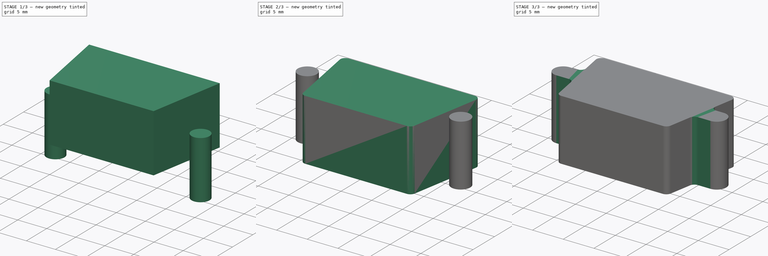
[diagram: build sequence overview — one tinted view per stage of 3, left to right]
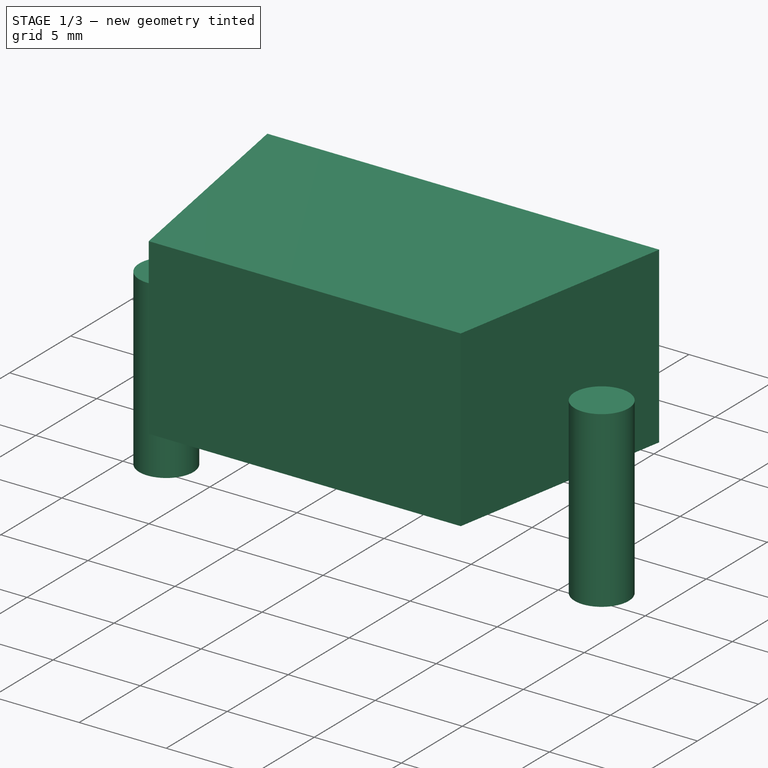
[diagram: stage 1 of 3 — iso view after this stage's code; geometry added in this stage tinted green]
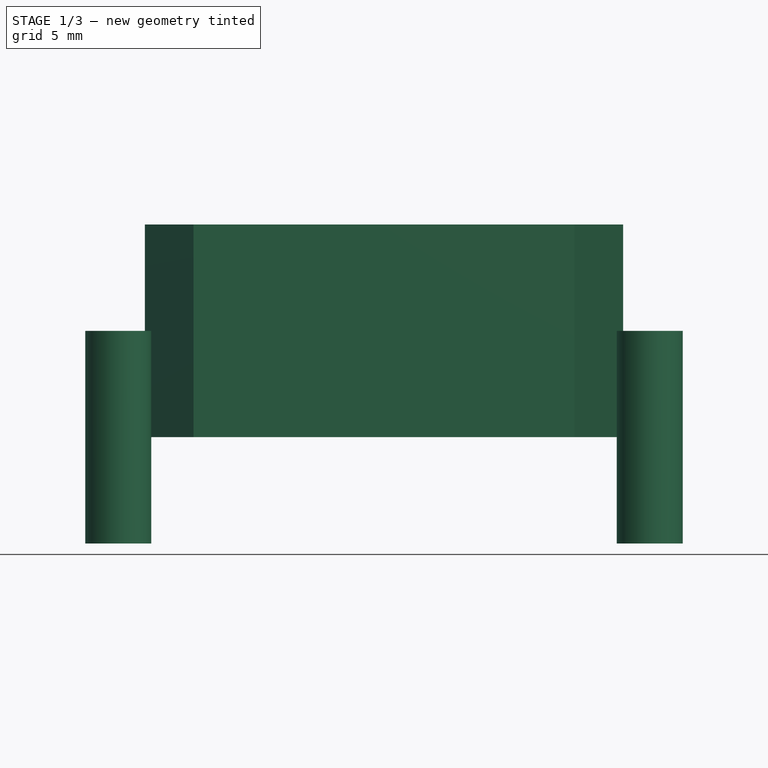
[diagram: stage 1 of 3 — front view after this stage's code; geometry added in this stage tinted green]
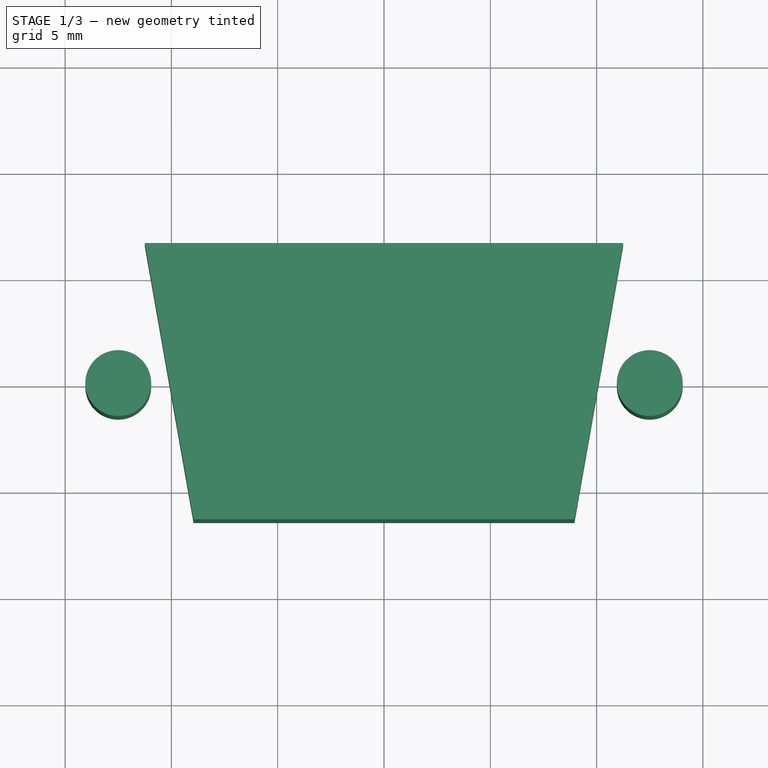
[diagram: stage 1 of 3 — top view after this stage's code; geometry added in this stage tinted green]
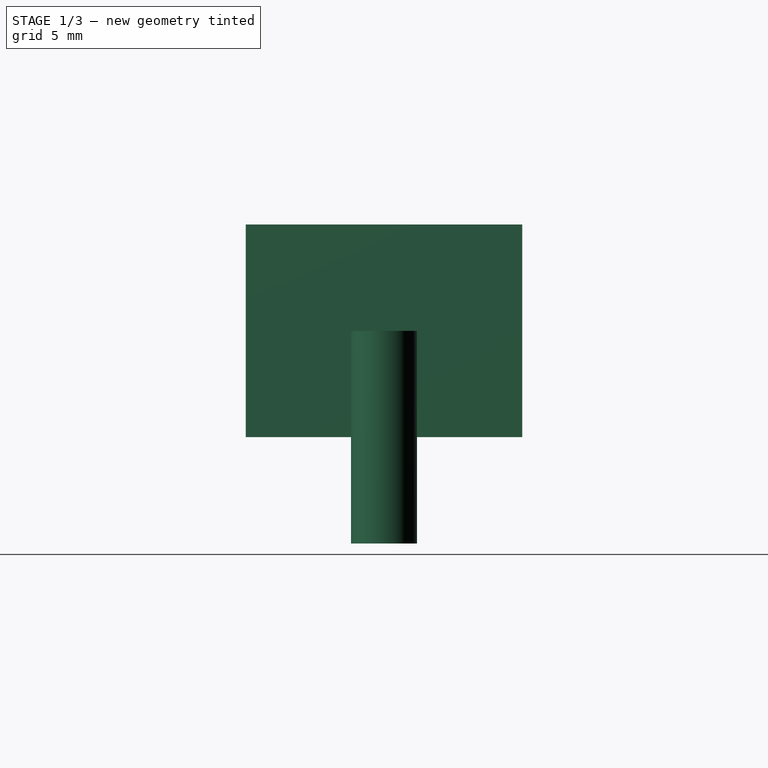
[diagram: stage 1 of 3 — right view after this stage's code; geometry added in this stage tinted green]
FCSTD DOCUMENT  (FreeCAD 1.0R1.0.0)
Label: DSub_IEC_60807_3
License: All rights reserved
LicenseURL: http://en.wikipedia.org/wiki/All_rights_reserved
objects: Part::Fillet×3, Sketcher::SketchObject×2, PartDesign::Pad×2, PartDesign::Body×2, Part::Cylinder×2, Spreadsheet::Sheet×1, Part::MultiFuse×1
note: 18 computed .brp shape members not serialized (recipe doc carries the construction recipe); baked Part::Feature solids carry a one-line shape summary decoded from their .brp

FEATURE [PartDesign::Body] Body  label="Panel Cutout Drawing"
  AllowCompound = false
  Group = -> [Sketch,Pad]
  Origin = -> Origin
  Placement = pos=(0,0,-5) rot=(0,0,1;0rad)
  Tip = -> Pad
  expr: .Placement.Base.z = -<<DSubConnector>>.cutout_template_height / 2
FEATURE [Part::Cylinder] Cylinder
  Angle = 360
  AttacherType = Attacher::AttachEngine3D
  FirstAngle = 0
  Height = 10
  Placement = pos=(12.5,0,-5) rot=(0,0,1;0rad)
  Radius = 1.55
  SecondAngle = 0
  expr: .Placement.Base.x = <<DSubConnector>>.cutoutD
  expr: .Placement.Base.z = -<<DSubConnector>>.cutout_template_height / 2
  expr: Height = <<DSubConnector>>.cutout_template_height
  expr: Radius = <<DSubConnector>>.cutoutG / 2
FEATURE [Part::Cylinder] Cylinder001
  Angle = 360
  AttacherType = Attacher::AttachEngine3D
  FirstAngle = 0
  Height = 10
  Placement = pos=(-12.5,0,-5) rot=(0,0,1;0rad)
  Radius = 1.55
  SecondAngle = 0
  expr: .Placement.Base.x = -<<DSubConnector>>.cutoutD
  expr: .Placement.Base.z = -<<DSubConnector>>.cutout_template_height / 2
  expr: Height = <<DSubConnector>>.cutout_template_height
  expr: Radius = <<DSubConnector>>.cutoutG / 2
FEATURE [Sketcher::SketchObject] Sketch001
  ArcFitTolerance = 1e-06
  AttachmentSupport = -> [XY_Plane001]
  FullyConstrained = true
  MakeInternals = false
  MapMode = 5
  expr: Constraints[2] = <<DSubConnector>>.cutoutA
  expr: Constraints[3] = <<DSubConnector>>.cutoutE
  expr: Constraints[4] = tan(10) * <<DSubConnector>>.cutoutE
  expr: Constraints[5] = tan(10) * <<DSubConnector>>.cutoutE
  expr: Constraints[6] = <<DSubConnector>>.cutoutA / 2
  expr: Constraints[7] = <<DSubConnector>>.cutoutE / 2
  sketch-geometry (4):
    g0: LineSegment StartX=-11.25 StartY=6.5 StartZ=0 EndX=11.25 EndY=6.5 EndZ=0
    g1: LineSegment StartX=8.95775 StartY=-6.5 StartZ=0 EndX=-8.95775 EndY=-6.5 EndZ=0
    g2: LineSegment StartX=-11.25 StartY=6.5 StartZ=0 EndX=-8.95775 EndY=-6.5 EndZ=0
    g3: LineSegment StartX=11.25 StartY=6.5 StartZ=0 EndX=8.95775 EndY=-6.5 EndZ=0
  constraints (12):
    c: Horizontal(g0)
    c: Horizontal(g1)
    c: DistanceX(g0,g0) = 22.5
    c: DistanceY(g1,g0) = 13
    c: DistanceX(g1,g0) = 2.29225
    c: DistanceX(g0,g1) = 2.29225
    c: DistanceX(g-1,g0) = 11.25
    c: DistanceY(g-1,g0) = 6.5
    c: Coincident(g2,g0)
    c: Coincident(g2,g1)
    c: Coincident(g3,g0)
    c: Coincident(g3,g1)
FEATURE [PartDesign::Pad] Pad001
  Direction = (0,0,1)
  Length = 10
  Length2 = 10
  Profile = -> Sketch001
  ReferenceAxis = -> Sketch001 [N_Axis]
  Suppressed = false
  Type = 0
  expr: Length = <<DSubConnector>>.cutout_template_height
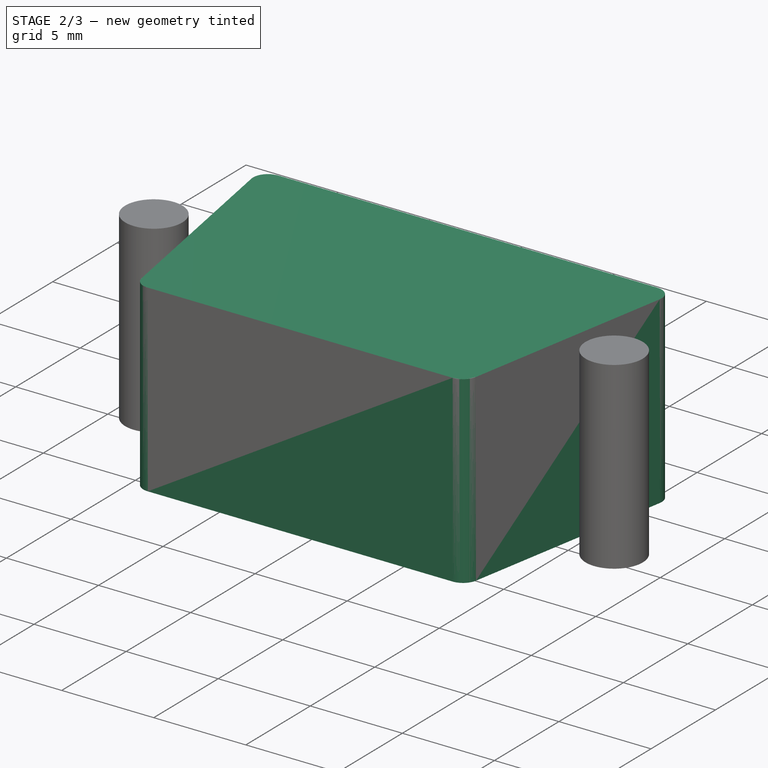
[diagram: stage 2 of 3 — iso view after this stage's code; geometry added in this stage tinted green]
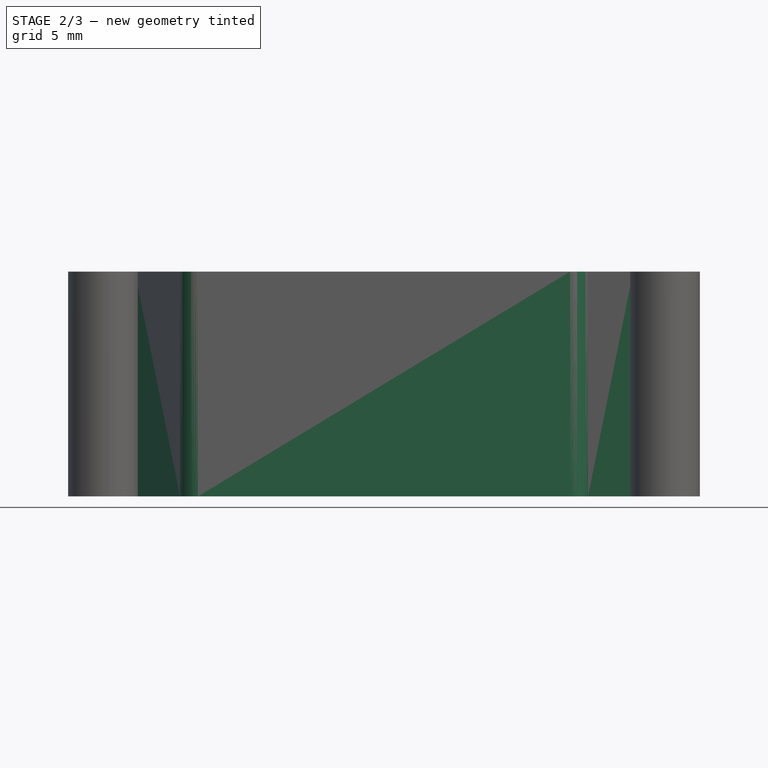
[diagram: stage 2 of 3 — front view after this stage's code; geometry added in this stage tinted green]
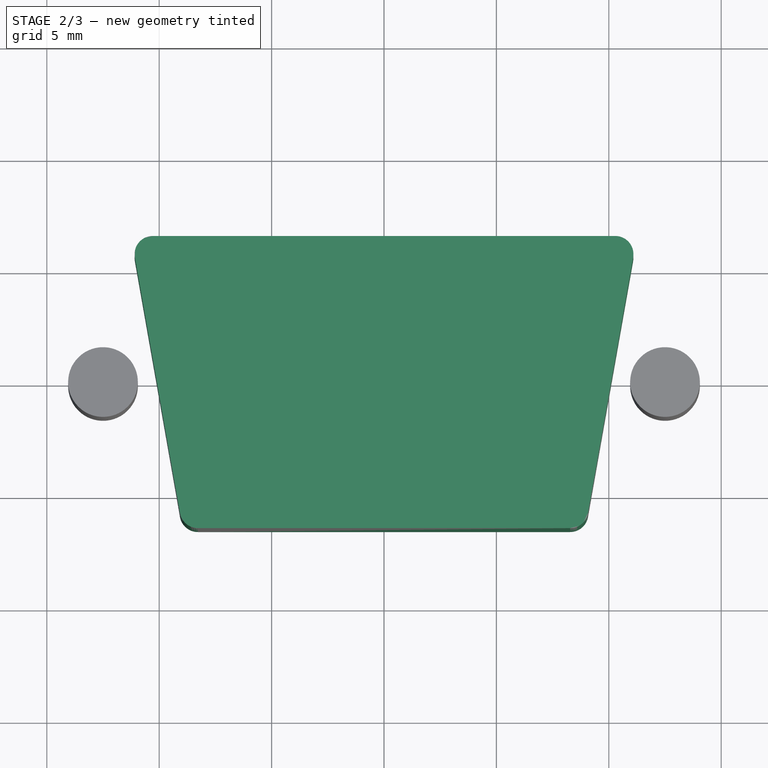
[diagram: stage 2 of 3 — top view after this stage's code; geometry added in this stage tinted green]
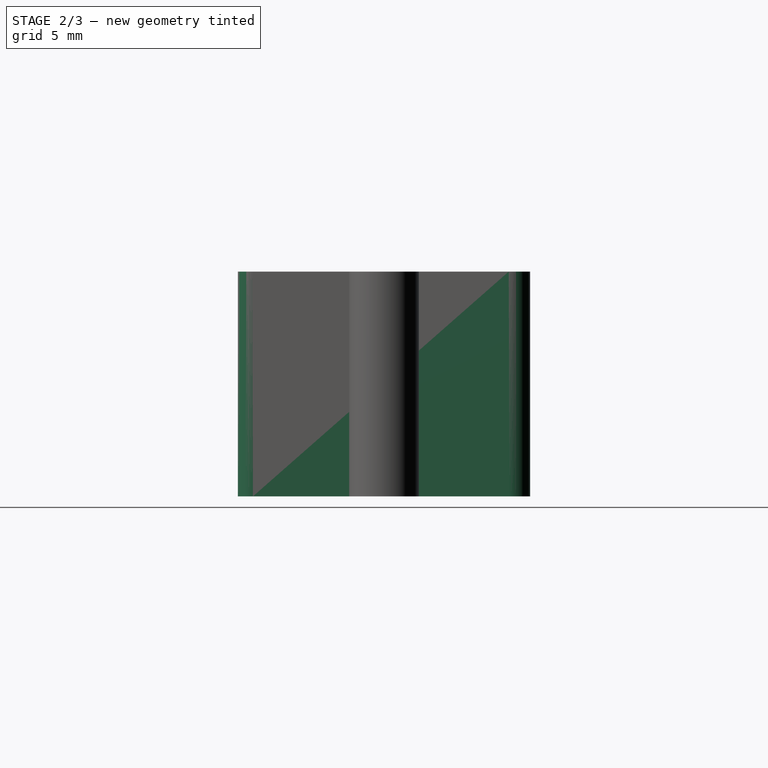
[diagram: stage 2 of 3 — right view after this stage's code; geometry added in this stage tinted green]
FEATURE [PartDesign::Body] Body001  label="Panel Cutout Rear"
  AllowCompound = false
  Group = -> [Sketch001,Pad001]
  Origin = -> Origin001
  Placement = pos=(0,0,-5) rot=(0,0,1;0rad)
  Tip = -> Pad001
  expr: .Placement.Base.z = -<<DSubConnector>>.cutout_template_height / 2
FEATURE [Part::MultiFuse] Fusion
  Shapes = -> [Cylinder001,Cylinder,Body001]
FEATURE [Part::Fillet] Fillet004  label="Panel Cutout Rear001"
  Base = -> Fusion
  EdgeLinks = -> Fusion [Edge7,Edge8,Edge11,Edge14]
  Edges = 4 edges r=0.81: [Edge7,Edge8,Edge11,Edge14]
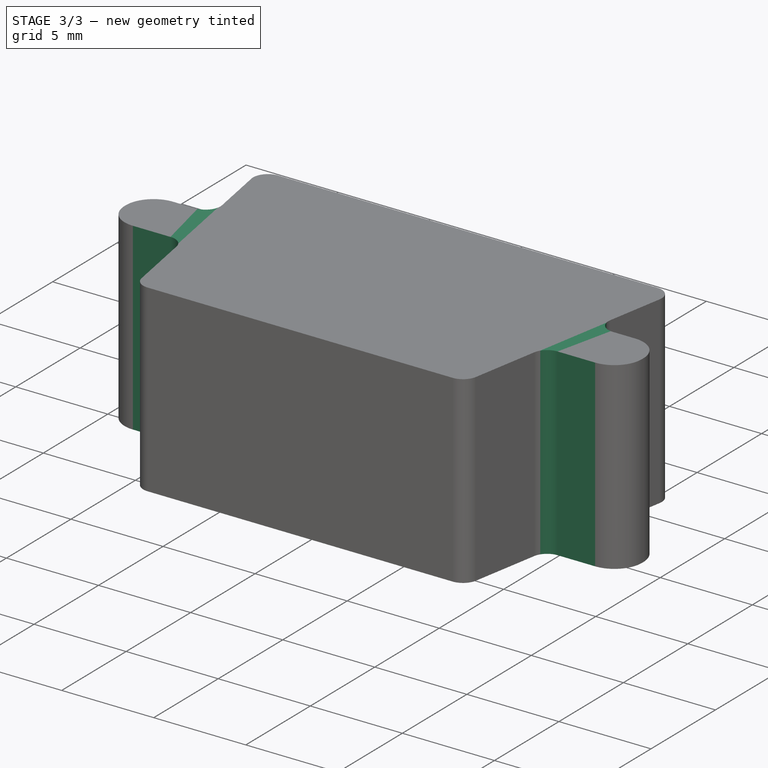
[diagram: stage 3 of 3 — iso view after this stage's code; geometry added in this stage tinted green]
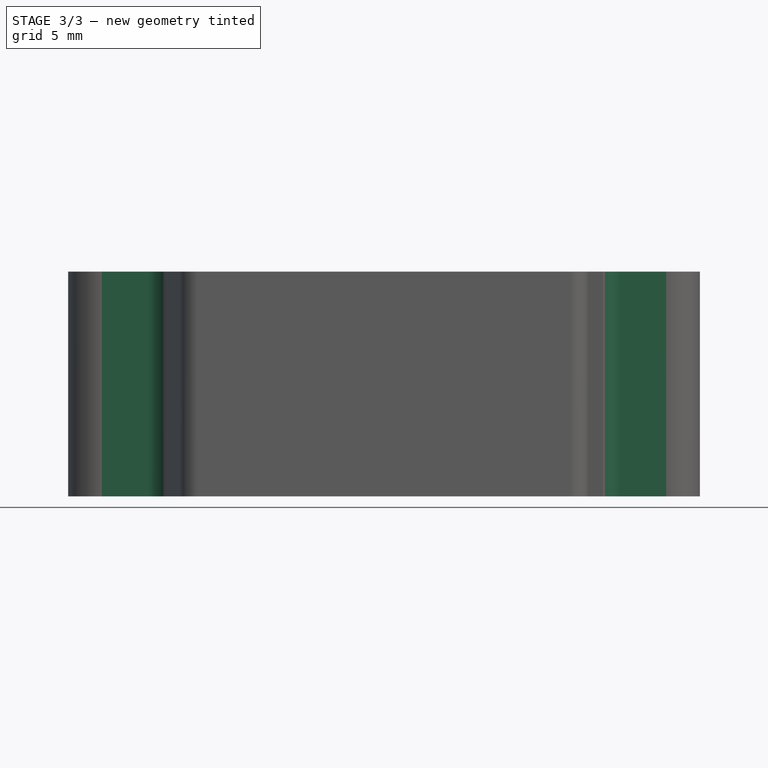
[diagram: stage 3 of 3 — front view after this stage's code; geometry added in this stage tinted green]
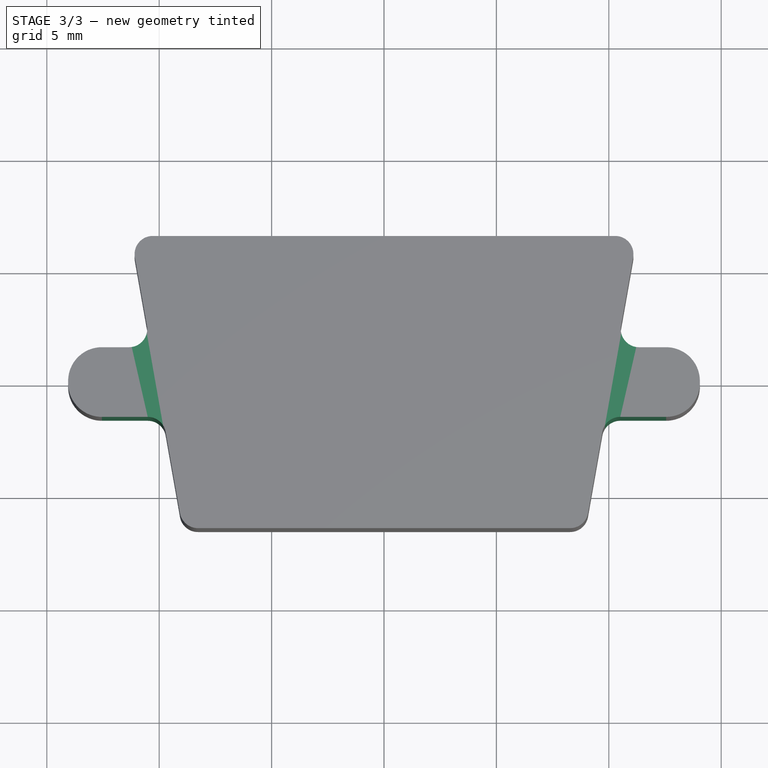
[diagram: stage 3 of 3 — top view after this stage's code; geometry added in this stage tinted green]
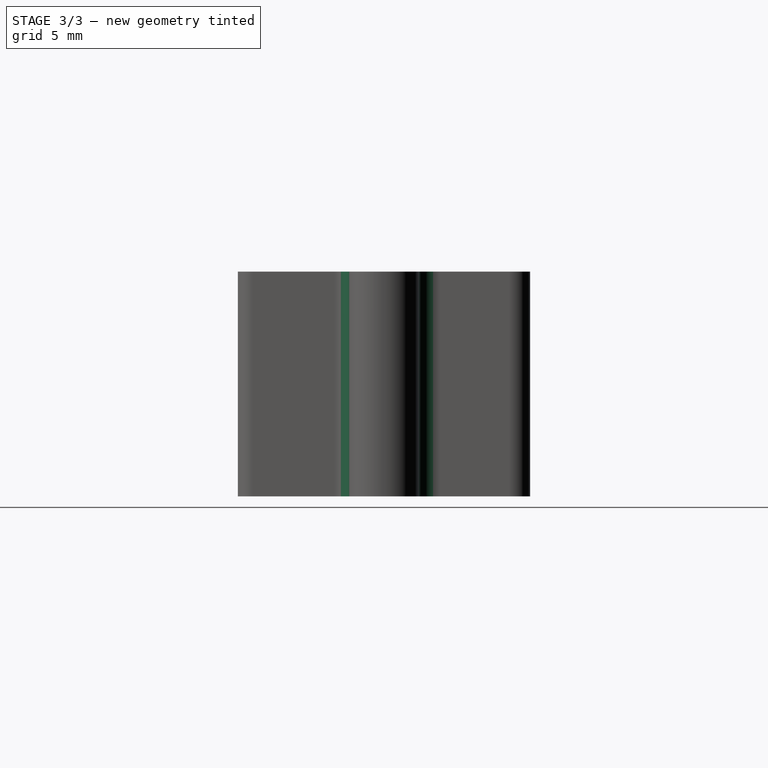
[diagram: stage 3 of 3 — right view after this stage's code; geometry added in this stage tinted green]
FEATURE [Spreadsheet::Sheet] Spreadsheet  label="DSubConnector"
  cells = A1='Number of contacts; B1='Shell size; C1='A; D1='B; E1='C; F1='D; G1='E; H1='F; I1='G; J1='H; K1='J; L1='K; M1='L; N1='M; O1='Cutout A; P1='Cutout B; Q1='Cutout C; R1='Cutout D; S1='Cutout E; T1='Cutout F; U1='Cutout G; V1='Cutout H; W1='Cutout J; A2==hiddenref(.pin_count.String); B2(shell_size)==.B3; C2(dimA)==.C3; D2(dimB)==.D3; E2(dimC)==.E3; F2(dimD)==.F3; G2(dimE)==.G3; H2(dimF)==.H3; I2(dimG)==.I3; J2(dimH)==.J3; K2(dimJ)==.K3; L2(dimK)==.L3; M2(dimL)==.M3; N2(dimM)==.N3; O2(cutoutA)==.O3; P2(cutoutB)==.P3; Q2(cutoutC)==.Q3; R2(cutoutD)==.R3; S2(cutoutE)==.S3; T2(cutoutF)==.T3; U2(cutoutG)==.U3; V2(cutoutH)==.V3; W2(cutoutJ)==.W3; A3='9; B3=1; C3=30.81; D3=16.915; E3=30.935; F3=8.355; G3=12.55; H3=10.715; I3=6.73; J3=19.275; K3=10.715; L3=1.78; M3=0.765; N3=4.04; O3=22.5; P3=11.1; Q3=25; R3=12.5; S3=13; T3=6.5; U3=3.1; V3=1.5; W3=3.4; A4='15; B4=2; C4=39.14; D4=25.245; E4=33.325; F4=8.355; G4=12.55; H4=10.715; I4=6.73; J4=27.505; K4=10.715; L4=1.78; M4=0.765; N4=4.04; O4=30.5; P4=15.3; Q4=33.3; R4=16.7; S4=13; T4=6.5; U4=3.1; V4=1.5; W4=3.4; A5='25; B5=3; C5=53.035; D5=38.965; E5=47.04; F5=8.355; G5=12.55; H5=10.82; I5=6.5; J5=41.275; K5=10.715; L5=1.78; M5=0.99; N5=3.81; O5=44.3; P5=22.2; Q5=47; R5=23.5; S5=13; T5=6.5; U5=3.1; V5=1.5; W5=3.4; A6='37; B6=4; C6=66.93; D6=52.805; E6=61.115; F6=11.2; G6=15.37; H6=10.82; I6=6.5; J6=57.705; K6=10.715; L6=1.78; M6=0.99; N6=3.81; O6=60.7; P6=21.3; Q6=63.5; R6=31.8; S6=13; T6=6.5; U6=3.1; V6=1.5; W6=3.4; A8='Cutout configuration; A9='Cutout template height; B9(cutout_template_height)=10
  pin_count = 0
  expr: .cells.Bind.B2.W2 = tuple(.cells; <<B>> + str(hiddenref(pin_count) + 3); <<W>> + str(hiddenref(pin_count) + 3))
  expr: .pin_count.Enum = cells[<<A3:|>>]
FEATURE [Sketcher::SketchObject] Sketch
  ArcFitTolerance = 1e-06
  AttachmentSupport = -> [XY_Plane]
  FullyConstrained = true
  MakeInternals = false
  MapMode = 5
  expr: Constraints[19] = <<DSubConnector>>.cutoutA
  expr: Constraints[22] = <<DSubConnector>>.cutoutE
  expr: Constraints[25] = <<DSubConnector>>.cutoutG
  expr: Constraints[26] = <<DSubConnector>>.cutoutG
  expr: Constraints[27] = <<DSubConnector>>.cutoutE / 2 - <<DSubConnector>>.cutoutG / 2
  expr: Constraints[28] = <<DSubConnector>>.cutoutE / 2 - <<DSubConnector>>.cutoutG / 2
  expr: Constraints[29] = tan(10) * <<DSubConnector>>.cutoutE
  expr: Constraints[30] = tan(10) * <<DSubConnector>>.cutoutE
  expr: Constraints[31] = <<DSubConnector>>.cutoutA / 2
  expr: Constraints[32] = <<DSubConnector>>.cutoutE / 2
  expr: Constraints[34] = (<<DSubConnector>>.cutoutC + <<DSubConnector>>.cutoutG - <<DSubConnector>>.cutoutA) / 2
  expr: Constraints[35] = (<<DSubConnector>>.cutoutC + <<DSubConnector>>.cutoutG - <<DSubConnector>>.cutoutA) / 2
  sketch-geometry (12):
    g0: LineSegment StartX=-11.25 StartY=6.5 StartZ=0 EndX=11.25 EndY=6.5 EndZ=0
    g1: LineSegment StartX=11.25 StartY=6.5 StartZ=0 EndX=10.3772 EndY=1.55 EndZ=0
    g2: LineSegment StartX=10.3772 StartY=1.55 StartZ=0 EndX=14.05 EndY=1.55 EndZ=0
    g3: LineSegment StartX=14.05 StartY=1.55 StartZ=0 EndX=14.05 EndY=-1.55 EndZ=0
    g4: LineSegment StartX=14.05 StartY=-1.55 StartZ=0 EndX=9.83057 EndY=-1.55 EndZ=0
    g5: LineSegment StartX=9.83057 StartY=-1.55 StartZ=0 EndX=8.95775 EndY=-6.5 EndZ=0
    g6: LineSegment StartX=8.95775 StartY=-6.5 StartZ=0 EndX=-8.95775 EndY=-6.5 EndZ=0
    g7: LineSegment StartX=-8.95775 StartY=-6.5 StartZ=0 EndX=-9.83057 EndY=-1.55 EndZ=0
    g8: LineSegment StartX=-9.83057 StartY=-1.55 StartZ=0 EndX=-14.05 EndY=-1.55 EndZ=0
    g9: LineSegment StartX=-14.05 StartY=-1.55 StartZ=0 EndX=-14.05 EndY=1.55 EndZ=0
    g10: LineSegment StartX=-14.05 StartY=1.55 StartZ=0 EndX=-10.3772 EndY=1.55 EndZ=0
    g11: LineSegment StartX=-10.3772 StartY=1.55 StartZ=0 EndX=-11.25 EndY=6.5 EndZ=0
  constraints (36):
    c: Horizontal(g0)
    c: Coincident(g0,g1)
    c: Coincident(g1,g2)
    c: Horizontal(g2)
    c: Coincident(g2,g3)
    c: Vertical(g3)
    c: Coincident(g3,g4)
    c: Horizontal(g4)
    c: Coincident(g4,g5)
    c: Coincident(g5,g6)
    c: Horizontal(g6)
    c: Coincident(g6,g7)
    c: Coincident(g7,g8)
    c: Horizontal(g8)
    c: Coincident(g8,g9)
    c: Coincident(g9,g10)
    c: Horizontal(g10)
    c: Coincident(g10,g11)
    c: Coincident(g11,g0)
    c: DistanceX(g0,g0) = 22.5
    c: Angle(g11,g0) = 1.39626
    c: Angle(g0,g1) = 1.39626
    c: DistanceY(g6,g0) = 13
    c: Angle(g6,g7) = 1.74533
    c: Angle(g5,g6) = 1.74533
    c: DistanceY(g8,g9) = 3.1
    c: DistanceY(g3,g2) = 3.1
    c: DistanceY(g9,g0) = 4.95
    c: DistanceY(g2,g0) = 4.95
    c: DistanceX(g5,g0) = 2.29225
    c: DistanceX(g0,g6) = 2.29225
    c: DistanceX(g-1,g0) = 11.25
    c: DistanceY(g-1,g0) = 6.5
    c: Vertical(g9)
    c: DistanceX(g9,g0) = 2.8
    c: DistanceX(g0,g2) = 2.8
FEATURE [PartDesign::Pad] Pad
  Direction = (0,0,1)
  Length = 10
  Length2 = 10
  Profile = -> Sketch
  ReferenceAxis = -> Sketch [N_Axis]
  Suppressed = false
  Type = 0
  expr: Length = <<DSubConnector>>.cutout_template_height
FEATURE [Part::Fillet] Fillet
  Base = -> Pad
  EdgeLinks = -> Pad [Edge8,Edge11,Edge26,Edge29]
  Edges = 4 edges r=1.5: [Edge8,Edge11,Edge26,Edge29]
FEATURE [Part::Fillet] Fillet003  label="Panel Cutout"
  Base = -> Fillet
  EdgeLinks = -> Fillet [Edge3,Edge22,Edge38,Edge40,Edge41,Edge43,Edge45,Edge47]
  Edges = 8 edges r=0.81: [Edge3,Edge22,Edge38,Edge40,Edge41,Edge43,Edge45,Edge47]
  Placement = pos=(0,0,-5) rot=(0,0,1;0rad)
  expr: .Placement.Base.z = -<<DSubConnector>>.cutout_template_height / 2
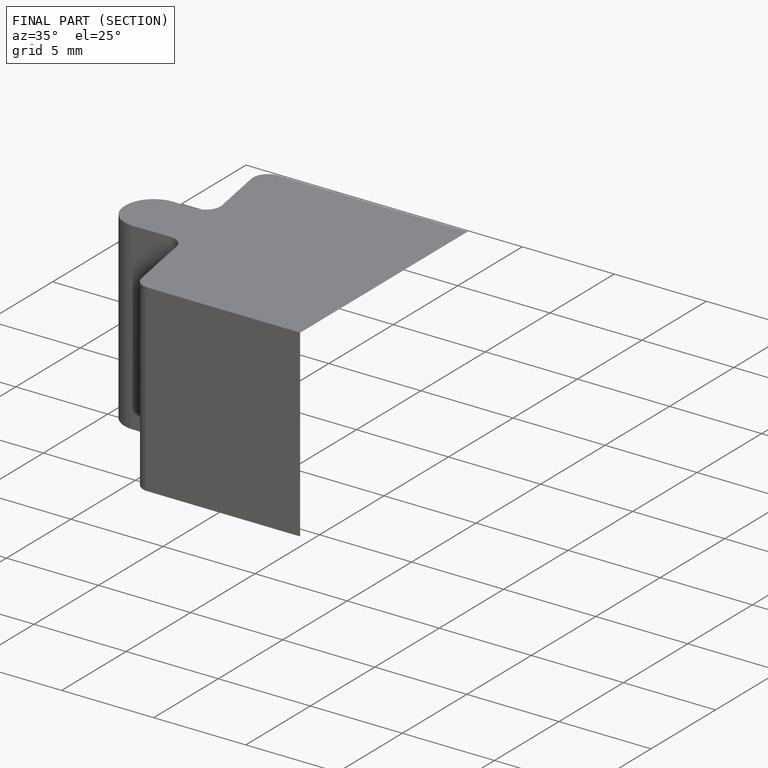
[diagram: finished part — half-section view (interior)]
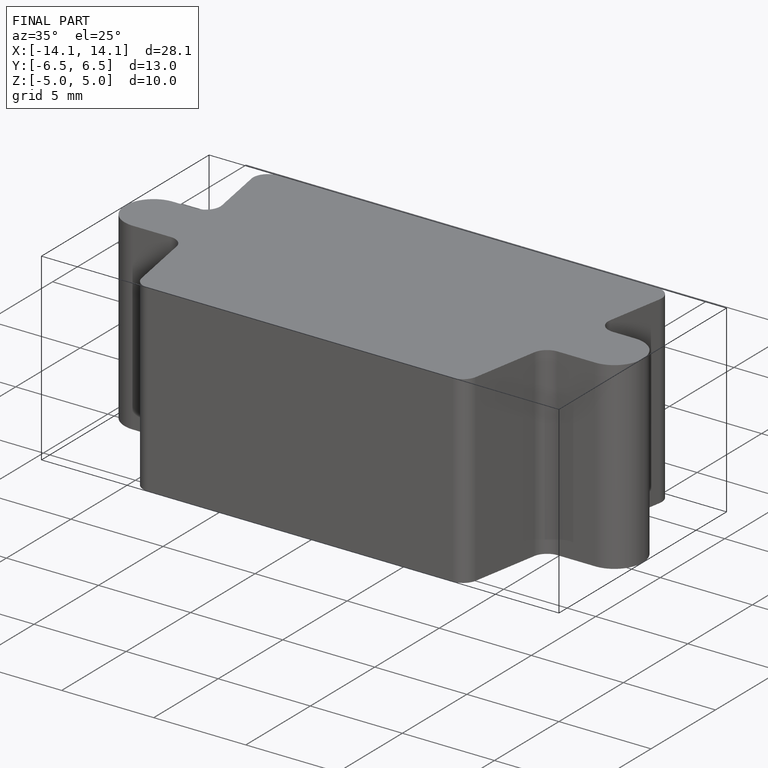
[diagram: finished part — iso view with bounding-box wireframe]
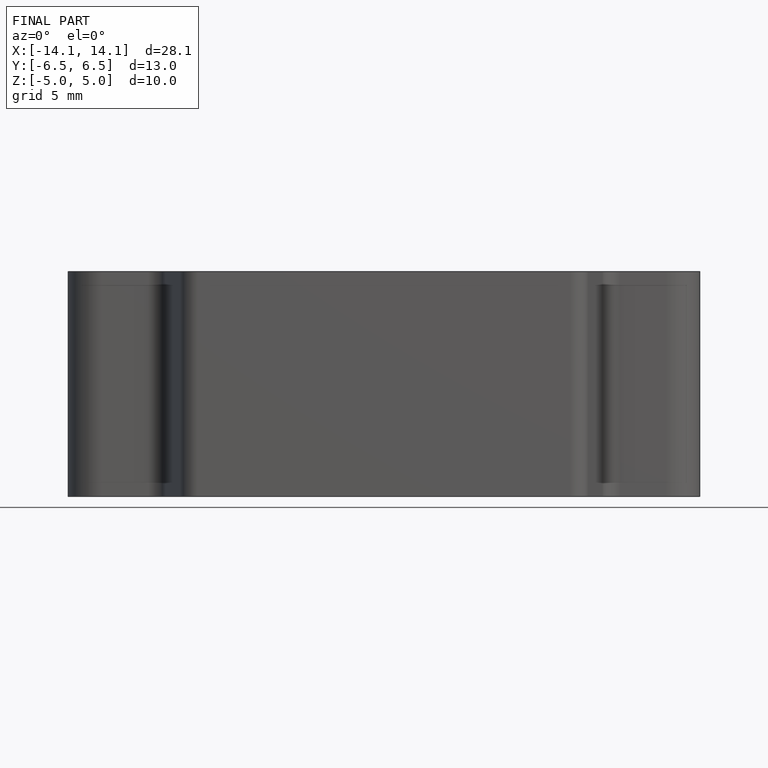
[diagram: finished part — front view with bounding-box wireframe]
